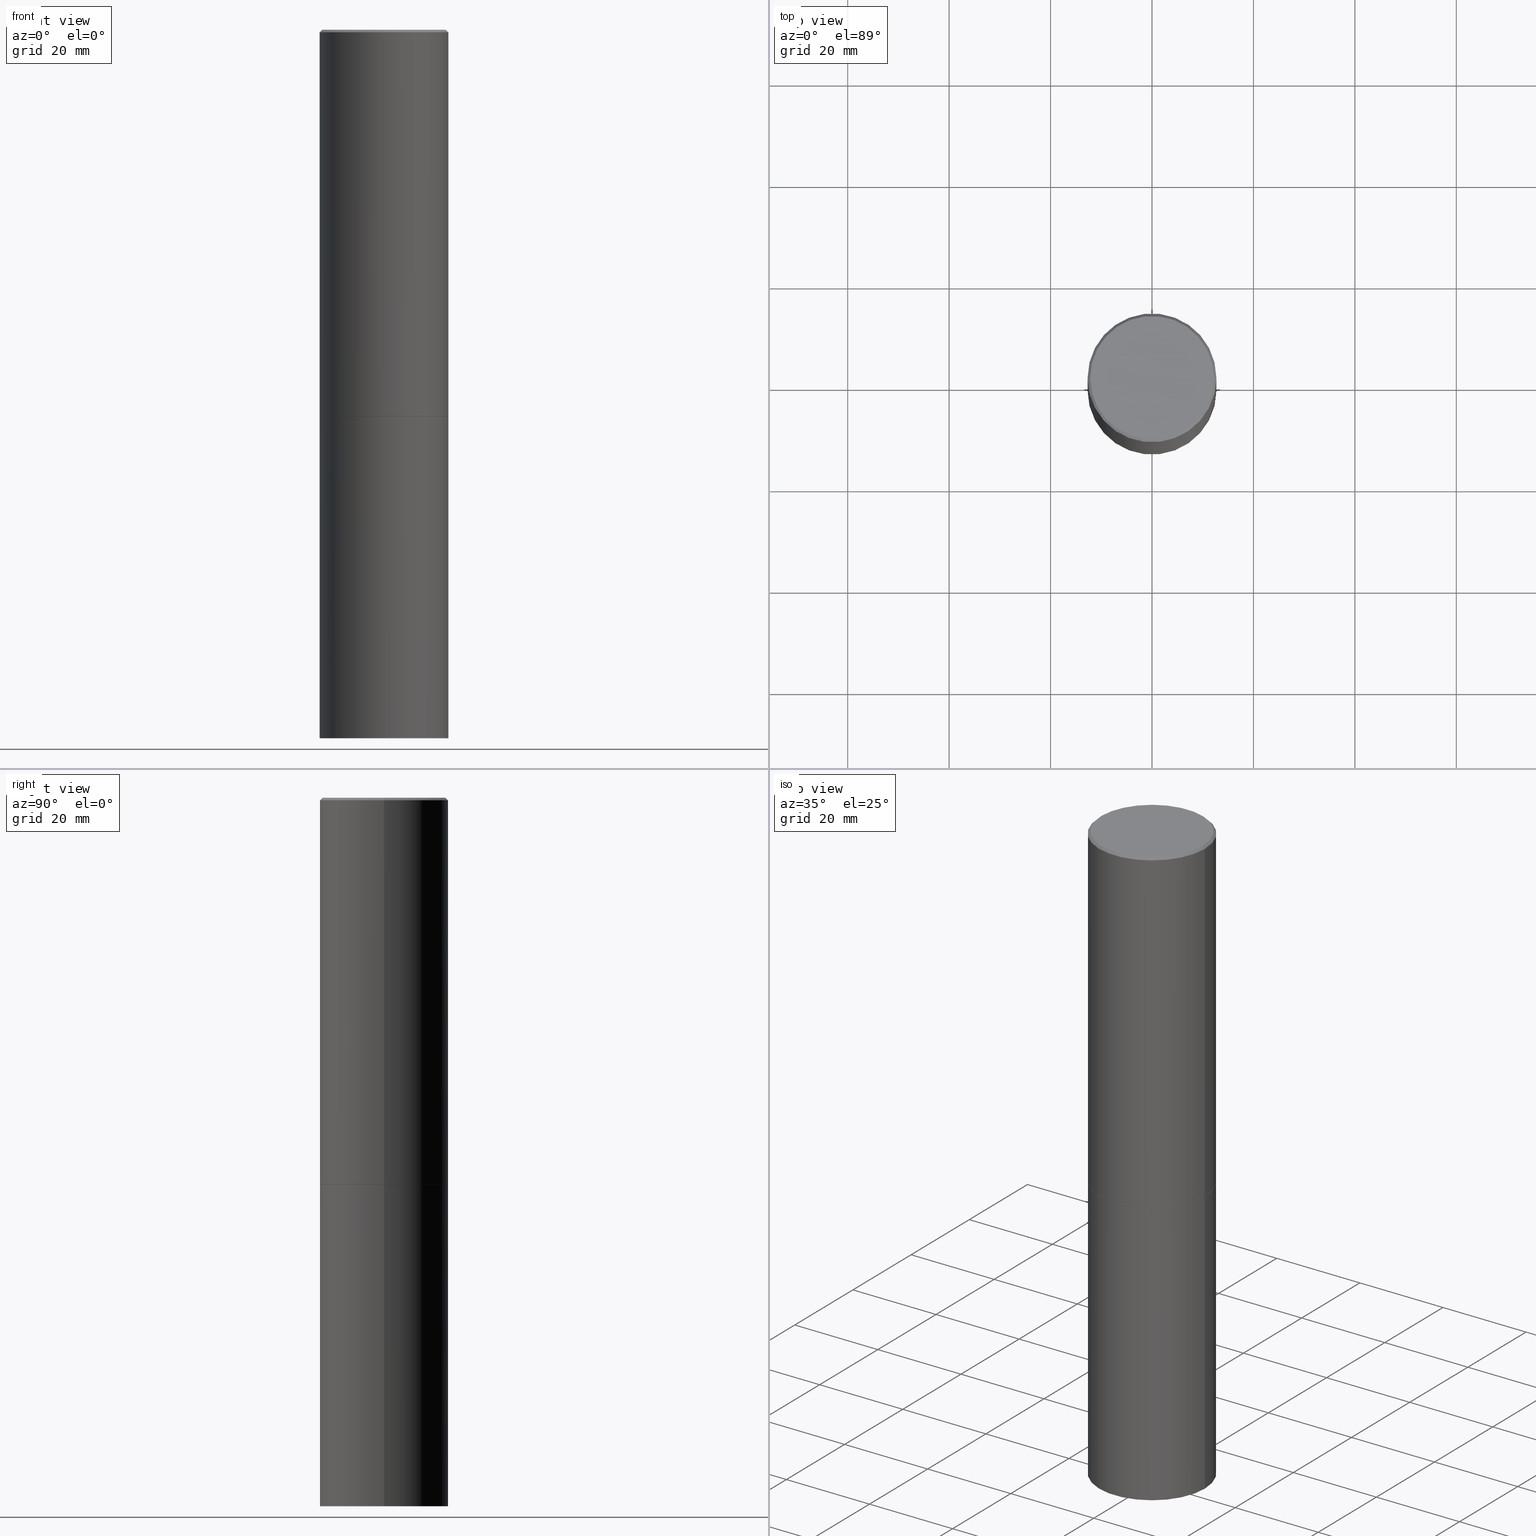
[diagram: canonical four-view strip — front | top / right | iso, engineering-drawing reading convention]
A machine part, canonical four-view strip (front | top / right | iso — engineering-drawing reading convention). The complete STEP part file that produces these views, byte-faithful:
ISO-10303-21;
HEADER;
FILE_DESCRIPTION (( 'STEP AP203' ),
    '1' );
FILE_NAME ('77463.STEP',
    '2024-05-03T15:07:17',
    ( '' ),
    ( '' ),
    'SwSTEP 2.0',
    'SolidWorks 2023',
    '' );
FILE_SCHEMA (( 'CONFIG_CONTROL_DESIGN' ));
ENDSEC;

DATA;
#1 = APPROVAL_PERSON_ORGANIZATION ( #349, #262, #209 ) ;
#2 = CARTESIAN_POINT ( 'NONE',  ( 0.4999999999999997224, -3.500078625662627502E-15, -0.02000000000000013572 ) ) ;
#3 = DIRECTION ( 'NONE',  ( -2.445468806185136877E-29, 3.491481338843145188E-15, 1.000000000000000000 ) ) ;
#4 = PERSON_AND_ORGANIZATION ( #101, #96 ) ;
#5 = EDGE_CURVE ( 'NONE', #277, #221, #28, .T. ) ;
#6 = DIRECTION ( 'NONE',  ( -1.000000000000000000, 6.982962677686266711E-15, 0.000000000000000000 ) ) ;
#7 =( LENGTH_UNIT ( ) NAMED_UNIT ( * ) SI_UNIT ( $, .METRE. ) );
#8 = CARTESIAN_POINT ( 'NONE',  ( 0.000000000000000000, 0.000000000000000000, 0.000000000000000000 ) ) ;
#9 = PERSON_AND_ORGANIZATION ( #101, #96 ) ;
#10 = DIRECTION ( 'NONE',  ( -2.445468806185136597E-29, 3.491481338843145583E-15, 1.000000000000000000 ) ) ;
#11 = EDGE_CURVE ( 'NONE', #110, #270, #358, .T. ) ;
#12 = DATE_AND_TIME ( #105, #291 ) ;
#13 = VERTEX_POINT ( 'NONE', #140 ) ;
#14 = CALENDAR_DATE ( 2024, 3, 5 ) ;
#15 = CARTESIAN_POINT ( 'NONE',  ( 1.345007843401824904E-28, -1.920314736363729972E-14, -5.500000000000000000 ) ) ;
#16 = SECURITY_CLASSIFICATION_LEVEL ( 'unclassified' ) ;
#17 = ORIENTED_EDGE ( 'NONE', *, *, #80, .T. ) ;
#18 = FACE_OUTER_BOUND ( 'NONE', #89, .T. ) ;
#19 = ORIENTED_EDGE ( 'NONE', *, *, #219, .F. ) ;
#20 = CARTESIAN_POINT ( 'NONE',  ( -0.4799999999999995937, 3.386736898677836436E-15, 1.280553747027767124E-17 ) ) ;
#21 = AXIS2_PLACEMENT_3D ( 'NONE', #159, #153, #312 ) ;
#22 = AXIS2_PLACEMENT_3D ( 'NONE', #145, #363, #119 ) ;
#23 = ORIENTED_EDGE ( 'NONE', *, *, #338, .F. ) ;
#24 = LINE ( 'NONE', #32, #199 ) ;
#25 = ORIENTED_EDGE ( 'NONE', *, *, #322, .T. ) ;
#26 = FACE_OUTER_BOUND ( 'NONE', #275, .T. ) ;
#27 = EDGE_LOOP ( 'NONE', ( #191, #279, #19, #170 ) ) ;
#28 = LINE ( 'NONE', #250, #178 ) ;
#29 = DIRECTION ( 'NONE',  ( 1.000000000000000000, -6.982962677686269077E-15, 0.000000000000000000 ) ) ;
#30 = PLANE ( 'NONE',  #22 ) ;
#31 = ADVANCED_FACE ( 'NONE', ( #247 ), #297, .T. ) ;
#32 = CARTESIAN_POINT ( 'NONE',  ( -0.4999999999999997224, 3.421651712066268085E-15, -0.02000000000000013572 ) ) ;
#33 = DESIGN_CONTEXT ( 'detailed design', #92, 'design' ) ;
#34 = CARTESIAN_POINT ( 'NONE',  ( 4.890937612370306439E-31, -6.982962677686338448E-17, -0.02000000000000013572 ) ) ;
#35 = ADVANCED_BREP_SHAPE_REPRESENTATION ( '77463', ( #40, #37, #320 ), #156 ) ;
#36 = CC_DESIGN_APPROVAL ( #136, ( #259 ) ) ;
#37 = MANIFOLD_SOLID_BREP ( 'Body-Move/Copy2[2]', #346 ) ;
#38 = EDGE_CURVE ( 'NONE', #110, #13, #308, .T. ) ;
#39 = APPROVAL_STATUS ( 'not_yet_approved' ) ;
#40 = MANIFOLD_SOLID_BREP ( 'Body-Move/Copy2[1]', #148 ) ;
#41 = COORDINATED_UNIVERSAL_TIME_OFFSET ( 5, 0, .BEHIND. ) ;
#42 = AXIS2_PLACEMENT_3D ( 'NONE', #317, #208, #183 ) ;
#43 = DIRECTION ( 'NONE',  ( -2.445468806185136597E-29, 3.491481338843145583E-15, 1.000000000000000000 ) ) ;
#44 = VECTOR ( 'NONE', #86, 39.37007874015748854 ) ;
#45 = COORDINATED_UNIVERSAL_TIME_OFFSET ( 5, 0, .BEHIND. ) ;
#46 = ORIENTED_EDGE ( 'NONE', *, *, #303, .F. ) ;
#47 = CARTESIAN_POINT ( 'NONE',  ( 3.491481338843206325E-15, 0.4999999999999895639, -3.000000000000001332 ) ) ;
#48 = UNCERTAINTY_MEASURE_WITH_UNIT (LENGTH_MEASURE( 1.000000000000000082E-05 ), #285, 'distance_accuracy_value', 'NONE');
#49 = EDGE_CURVE ( 'NONE', #117, #76, #81, .T. ) ;
#50 = CYLINDRICAL_SURFACE ( 'NONE', #184, 0.5000000000000000000 ) ;
#51 = DIRECTION ( 'NONE',  ( 1.000000000000000000, 0.000000000000000000, 0.000000000000000000 ) ) ;
#52 = EDGE_LOOP ( 'NONE', ( #360, #112, #354, #269 ) ) ;
#53 = AXIS2_PLACEMENT_3D ( 'NONE', #324, #239, #181 ) ;
#54 = MECHANICAL_CONTEXT ( 'NONE', #310, 'mechanical' ) ;
#55 = EDGE_CURVE ( 'NONE', #345, #304, #282, .T. ) ;
#56 = ORIENTED_EDGE ( 'NONE', *, *, #219, .T. ) ;
#57 = DIRECTION ( 'NONE',  ( 2.438088387897960049E-29, -3.491481338843145188E-15, -1.000000000000000000 ) ) ;
#58 = AXIS2_PLACEMENT_3D ( 'NONE', #68, #43, #174 ) ;
#59 = CARTESIAN_POINT ( 'NONE',  ( -0.5000000000000000000, 3.552713678800500929E-15, -2.459467545127452891E-29 ) ) ;
#60 = PRODUCT_RELATED_PRODUCT_CATEGORY ( 'detail', '', ( #364 ) ) ;
#61 = ORIENTED_EDGE ( 'NONE', *, *, #38, .T. ) ;
#62 = CARTESIAN_POINT ( 'NONE',  ( 4.890937612370306439E-31, -6.982962677686338448E-17, -0.02000000000000013572 ) ) ;
#63 = CARTESIAN_POINT ( 'NONE',  ( 0.000000000000000000, 0.000000000000000000, 0.000000000000000000 ) ) ;
#64 = CIRCLE ( 'NONE', #21, 0.4989999999999999991 ) ;
#65 = EDGE_LOOP ( 'NONE', ( #301, #90, #351, #46 ) ) ;
#66 = DIRECTION ( 'NONE',  ( 1.000000000000000000, -6.982962677686266711E-15, 4.876176775795935793E-29 ) ) ;
#67 = CIRCLE ( 'NONE', #73, 0.4799999999999995937 ) ;
#68 = CARTESIAN_POINT ( 'NONE',  ( 7.333960949749226429E-29, -1.047095253519059492E-14, -2.999000000000000554 ) ) ;
#69 = COORDINATED_UNIVERSAL_TIME_OFFSET ( 5, 0, .BEHIND. ) ;
#70 = CARTESIAN_POINT ( 'NONE',  ( 0.4999999999999998335, -3.491481338843132566E-15, 2.438088387897967336E-29 ) ) ;
#71 = LENGTH_MEASURE_WITH_UNIT ( LENGTH_MEASURE( 0.02539999999999999897 ), #7 );
#72 = ADVANCED_FACE ( 'NONE', ( #280 ), #30, .F. ) ;
#73 = AXIS2_PLACEMENT_3D ( 'NONE', #319, #126, #186 ) ;
#74 = DIRECTION ( 'NONE',  ( 1.000000000000000000, -6.982962677686266711E-15, 0.000000000000000000 ) ) ;
#75 = APPLICATION_PROTOCOL_DEFINITION ( 'international standard', 'config_control_design', 1994, #92 ) ;
#76 = VERTEX_POINT ( 'NONE', #175 ) ;
#77 = DIRECTION ( 'NONE',  ( 1.000000000000000000, -6.982962677686266711E-15, 0.000000000000000000 ) ) ;
#78 = EDGE_CURVE ( 'NONE', #197, #76, #128, .T. ) ;
#79 = LOCAL_TIME ( 11, 7, 17.00000000000000000, #41 ) ;
#80 = EDGE_CURVE ( 'NONE', #304, #221, #24, .T. ) ;
#81 = LINE ( 'NONE', #59, #172 ) ;
#82 = CARTESIAN_POINT ( 'NONE',  ( 3.351822085289404787E-15, 0.4799999999999995937, -1.669508273909557867E-15 ) ) ;
#83 = DIRECTION ( 'NONE',  ( 0.7071067811868130271, -2.468850131085038979E-15, 0.7071067811862817853 ) ) ;
#84 = CC_DESIGN_PERSON_AND_ORGANIZATION_ASSIGNMENT ( #124, #158, ( #364 ) ) ;
#85 = CONICAL_SURFACE ( 'NONE', #251, 0.4989999999999999991, 0.7853981633978239785 ) ;
#86 = DIRECTION ( 'NONE',  ( -0.7071067811868130271, 7.493145998871311837E-15, 0.7071067811862817853 ) ) ;
#87 = DIRECTION ( 'NONE',  ( -2.445468806185136597E-29, 3.491481338843145583E-15, 1.000000000000000000 ) ) ;
#88 = DIRECTION ( 'NONE',  ( 1.000000000000000000, -6.982962677686269077E-15, 0.000000000000000000 ) ) ;
#89 = EDGE_LOOP ( 'NONE', ( #273, #240, #133, #217 ) ) ;
#90 = ORIENTED_EDGE ( 'NONE', *, *, #147, .T. ) ;
#91 = CIRCLE ( 'NONE', #58, 0.5000000000000000000 ) ;
#92 = APPLICATION_CONTEXT ( 'configuration controlled 3d designs of mechanical parts and assemblies' ) ;
#93 = CARTESIAN_POINT ( 'NONE',  ( 0.5000000000000000000, -3.491481338843133355E-15, 2.438088387897967896E-29 ) ) ;
#94 = CC_DESIGN_DATE_AND_TIME_ASSIGNMENT ( #12, #236, ( #339 ) ) ;
#95 = DIRECTION ( 'NONE',  ( -2.445468806185136597E-29, 3.491481338843145583E-15, 1.000000000000000000 ) ) ;
#96 = ORGANIZATION ( 'UNSPECIFIED', 'UNSPECIFIED', '' ) ;
#97 = LINE ( 'NONE', #70, #359 ) ;
#98 = CARTESIAN_POINT ( 'NONE',  ( 0.5000000000000000000, -1.396592535537256813E-14, -2.999999999999999556 ) ) ;
#99 = DIRECTION ( 'NONE',  ( -2.445468806185136597E-29, 3.491481338843145583E-15, 1.000000000000000000 ) ) ;
#100 = CALENDAR_DATE ( 2024, 3, 5 ) ;
#101 = PERSON ( 'UNSPECIFIED', 'UNSPECIFIED', 'UNSPECIFIED', ('UNSPECIFIED'), ('UNSPECIFIED'), ('UNSPECIFIED') ) ;
#102 = ADVANCED_FACE ( 'NONE', ( #218 ), #146, .T. ) ;
#103 = APPROVAL_STATUS ( 'not_yet_approved' ) ;
#104 = CARTESIAN_POINT ( 'NONE',  ( -0.5000000000000000000, -1.717677402183226998E-15, -2.999000000000000554 ) ) ;
#105 = CALENDAR_DATE ( 2024, 3, 5 ) ;
#106 = DIRECTION ( 'NONE',  ( 1.000000000000000000, -6.982962677686262766E-15, 0.000000000000000000 ) ) ;
#107 = EDGE_LOOP ( 'NONE', ( #357, #226 ) ) ;
#108 = FACE_OUTER_BOUND ( 'NONE', #27, .T. ) ;
#109 = CC_DESIGN_SECURITY_CLASSIFICATION ( #259, ( #296 ) ) ;
#110 = VERTEX_POINT ( 'NONE', #326 ) ;
#111 = EDGE_CURVE ( 'NONE', #13, #277, #138, .T. ) ;
#112 = ORIENTED_EDGE ( 'NONE', *, *, #245, .T. ) ;
#113 = CARTESIAN_POINT ( 'NONE',  ( -0.4989999999999999991, -6.928835765086534855E-15, -2.999999999999999556 ) ) ;
#114 = DIRECTION ( 'NONE',  ( -2.445468806185136597E-29, 3.491481338843145583E-15, 1.000000000000000000 ) ) ;
#115 = CONICAL_SURFACE ( 'NONE', #213, 0.4999999999999997224, 0.7853981633974477239 ) ;
#116 = VERTEX_POINT ( 'NONE', #165 ) ;
#117 = VERTEX_POINT ( 'NONE', #276 ) ;
#118 = ADVANCED_FACE ( 'NONE', ( #26 ), #85, .T. ) ;
#119 = DIRECTION ( 'NONE',  ( 1.000000000000000000, -6.982962677686265922E-15, 4.876176775795935793E-29 ) ) ;
#120 = CARTESIAN_POINT ( 'NONE',  ( 0.4999999999999997224, -3.500078625662627502E-15, -0.02000000000000013572 ) ) ;
#121 = CC_DESIGN_DATE_AND_TIME_ASSIGNMENT ( #332, #167, ( #259 ) ) ;
#122 = DIRECTION ( 'NONE',  ( 0.7071067811865471286, -7.319954787623254468E-15, -0.7071067811865479058 ) ) ;
#123 = LOCAL_TIME ( 11, 7, 17.00000000000000000, #155 ) ;
#124 = PERSON_AND_ORGANIZATION ( #101, #96 ) ;
#125 = DIRECTION ( 'NONE',  ( 2.445468806185136597E-29, -3.491481338843145583E-15, -1.000000000000000000 ) ) ;
#126 = DIRECTION ( 'NONE',  ( -2.445468806185136597E-29, 3.491481338843145583E-15, 1.000000000000000000 ) ) ;
#127 = ORIENTED_EDGE ( 'NONE', *, *, #329, .F. ) ;
#128 = CIRCLE ( 'NONE', #228, 0.5000000000000000000 ) ;
#129 = APPROVAL_DATE_TIME ( #268, #262 ) ;
#130 = DIRECTION ( 'NONE',  ( 2.438088387897960049E-29, -3.491481338843145188E-15, -1.000000000000000000 ) ) ;
#131 = PERSON_AND_ORGANIZATION ( #101, #96 ) ;
#132 = ORIENTED_EDGE ( 'NONE', *, *, #365, .F. ) ;
#133 = ORIENTED_EDGE ( 'NONE', *, *, #78, .F. ) ;
#134 = DIRECTION ( 'NONE',  ( -2.445468806185136597E-29, 3.491481338843145583E-15, 1.000000000000000000 ) ) ;
#135 = AXIS2_PLACEMENT_3D ( 'NONE', #212, #288, #238 ) ;
#136 = APPROVAL ( #39, 'UNSPECIFIED' ) ;
#137 = ORIENTED_EDGE ( 'NONE', *, *, #11, .F. ) ;
#138 = LINE ( 'NONE', #113, #44 ) ;
#139 = ORIENTED_EDGE ( 'NONE', *, *, #111, .T. ) ;
#140 = CARTESIAN_POINT ( 'NONE',  ( -0.4989999999999999991, -6.923537310738314819E-15, -2.999999999999999556 ) ) ;
#141 = VECTOR ( 'NONE', #122, 39.37007874015748143 ) ;
#142 = DIRECTION ( 'NONE',  ( -2.445468806185136597E-29, 3.491481338843145583E-15, 1.000000000000000000 ) ) ;
#143 = DIRECTION ( 'NONE',  ( -2.445468806185136597E-29, 3.491481338843145583E-15, 1.000000000000000000 ) ) ;
#144 = ADVANCED_FACE ( 'NONE', ( #194 ), #341, .T. ) ;
#145 = CARTESIAN_POINT ( 'NONE',  ( 7.336406418555408669E-29, -1.047444401652943478E-14, -2.999999999999999556 ) ) ;
#146 = CONICAL_SURFACE ( 'NONE', #190, 0.4989999999999999991, 0.7853981633978239785 ) ;
#147 = EDGE_CURVE ( 'NONE', #277, #270, #91, .T. ) ;
#148 = CLOSED_SHELL ( 'NONE', ( #305, #265, #284, #200 ) ) ;
#149 = EDGE_CURVE ( 'NONE', #270, #224, #97, .T. ) ;
#150 = COORDINATED_UNIVERSAL_TIME_OFFSET ( 5, 0, .BEHIND. ) ;
#151 = DIRECTION ( 'NONE',  ( -2.445468806185136597E-29, 3.491481338843145583E-15, 1.000000000000000000 ) ) ;
#152 = PERSON_AND_ORGANIZATION_ROLE ( 'creator' ) ;
#153 = DIRECTION ( 'NONE',  ( -2.445468806185136597E-29, 3.491481338843145583E-15, 1.000000000000000000 ) ) ;
#154 = AXIS2_PLACEMENT_3D ( 'NONE', #47, #130, #356 ) ;
#155 = COORDINATED_UNIVERSAL_TIME_OFFSET ( 5, 0, .BEHIND. ) ;
#156 =( GEOMETRIC_REPRESENTATION_CONTEXT ( 3 ) GLOBAL_UNCERTAINTY_ASSIGNED_CONTEXT ( ( #48 ) ) GLOBAL_UNIT_ASSIGNED_CONTEXT ( ( #285, #242, #292 ) ) REPRESENTATION_CONTEXT ( 'NONE', 'WORKASPACE' ) );
#157 = DIRECTION ( 'NONE',  ( -2.445468806185136597E-29, 3.491481338843145583E-15, 1.000000000000000000 ) ) ;
#158 = PERSON_AND_ORGANIZATION_ROLE ( 'design_owner' ) ;
#159 = CARTESIAN_POINT ( 'NONE',  ( 7.336406418555408669E-29, -1.047444401652943478E-14, -2.999999999999999556 ) ) ;
#160 = EDGE_CURVE ( 'NONE', #116, #197, #261, .T. ) ;
#161 = CYLINDRICAL_SURFACE ( 'NONE', #42, 0.4999999999999998335 ) ;
#162 = ORIENTED_EDGE ( 'NONE', *, *, #55, .T. ) ;
#163 = CC_DESIGN_APPROVAL ( #249, ( #339 ) ) ;
#164 = DIRECTION ( 'NONE',  ( -2.445468806185136877E-29, 3.491481338843145188E-15, 1.000000000000000000 ) ) ;
#165 = CARTESIAN_POINT ( 'NONE',  ( 0.5000000000000000000, -2.269462870248043307E-14, -5.500000000000000000 ) ) ;
#166 = ORIENTED_EDGE ( 'NONE', *, *, #180, .F. ) ;
#167 = DATE_TIME_ROLE ( 'classification_date' ) ;
#168 = ORIENTED_EDGE ( 'NONE', *, *, #329, .T. ) ;
#169 = CC_DESIGN_APPROVAL ( #262, ( #296 ) ) ;
#170 = ORIENTED_EDGE ( 'NONE', *, *, #149, .F. ) ;
#171 = CYLINDRICAL_SURFACE ( 'NONE', #257, 0.5000000000000000000 ) ;
#172 = VECTOR ( 'NONE', #164, 39.37007874015748143 ) ;
#173 = AXIS2_PLACEMENT_3D ( 'NONE', #34, #95, #202 ) ;
#174 = DIRECTION ( 'NONE',  ( 1.000000000000000000, -6.982962677686266711E-15, 0.000000000000000000 ) ) ;
#175 = CARTESIAN_POINT ( 'NONE',  ( -0.5000000000000000000, -1.128608201128286632E-14, -2.999999999999999556 ) ) ;
#176 = AXIS2_PLACEMENT_3D ( 'NONE', #82, #57, #216 ) ;
#177 = APPLICATION_PROTOCOL_DEFINITION ( 'international standard', 'config_control_design', 1994, #310 ) ;
#178 = VECTOR ( 'NONE', #325, 39.37007874015748143 ) ;
#179 = CARTESIAN_POINT ( 'NONE',  ( 0.4799999999999995937, -3.396558832296480127E-15, 1.280553747032483033E-17 ) ) ;
#180 = EDGE_CURVE ( 'NONE', #345, #224, #342, .T. ) ;
#181 = DIRECTION ( 'NONE',  ( 1.000000000000000000, -6.982962677686262766E-15, 0.000000000000000000 ) ) ;
#182 = EDGE_LOOP ( 'NONE', ( #166, #299, #17, #254 ) ) ;
#183 = DIRECTION ( 'NONE',  ( 1.000000000000000000, -6.982962677686267499E-15, 4.876176775795936353E-29 ) ) ;
#184 = AXIS2_PLACEMENT_3D ( 'NONE', #290, #157, #267 ) ;
#185 = PERSON_AND_ORGANIZATION_ROLE ( 'creator' ) ;
#186 = DIRECTION ( 'NONE',  ( 1.000000000000000000, -6.982962677686266711E-15, 4.876036955247133327E-29 ) ) ;
#187 = DIRECTION ( 'NONE',  ( 1.000000000000000000, -6.982962677686266711E-15, 0.000000000000000000 ) ) ;
#188 = CARTESIAN_POINT ( 'NONE',  ( 7.336406418555408669E-29, -1.047444401652943478E-14, -2.999999999999999556 ) ) ;
#189 = FACE_OUTER_BOUND ( 'NONE', #246, .T. ) ;
#190 = AXIS2_PLACEMENT_3D ( 'NONE', #300, #361, #29 ) ;
#191 = ORIENTED_EDGE ( 'NONE', *, *, #365, .T. ) ;
#192 = LOCAL_TIME ( 11, 7, 17.00000000000000000, #69 ) ;
#193 = ORIENTED_EDGE ( 'NONE', *, *, #180, .T. ) ;
#194 = FACE_OUTER_BOUND ( 'NONE', #355, .T. ) ;
#195 = ORIENTED_EDGE ( 'NONE', *, *, #80, .F. ) ;
#196 = CALENDAR_DATE ( 2024, 3, 5 ) ;
#197 = VERTEX_POINT ( 'NONE', #98 ) ;
#198 = AXIS2_PLACEMENT_3D ( 'NONE', #244, #321, #187 ) ;
#199 = VECTOR ( 'NONE', #337, 39.37007874015748143 ) ;
#200 = ADVANCED_FACE ( 'NONE', ( #309 ), #171, .T. ) ;
#201 = ADVANCED_FACE ( 'NONE', ( #283 ), #115, .T. ) ;
#202 = DIRECTION ( 'NONE',  ( 1.000000000000000000, -6.982962677686266711E-15, 0.000000000000000000 ) ) ;
#203 = CIRCLE ( 'NONE', #336, 0.4999999999999997224 ) ;
#204 = APPROVAL_ROLE ( '' ) ;
#205 = APPROVAL_STATUS ( 'not_yet_approved' ) ;
#206 = LOCAL_TIME ( 11, 7, 17.00000000000000000, #150 ) ;
#207 = AXIS2_PLACEMENT_3D ( 'NONE', #188, #143, #362 ) ;
#208 = DIRECTION ( 'NONE',  ( -2.445468806185136597E-29, 3.491481338843145583E-15, 1.000000000000000000 ) ) ;
#209 = APPROVAL_ROLE ( '' ) ;
#210 = EDGE_LOOP ( 'NONE', ( #316, #335, #243, #127 ) ) ;
#211 = PERSON_AND_ORGANIZATION ( #101, #96 ) ;
#212 = CARTESIAN_POINT ( 'NONE',  ( 3.491481338843267462E-15, 0.4999999999999807931, -5.500000000000001776 ) ) ;
#213 = AXIS2_PLACEMENT_3D ( 'NONE', #340, #125, #281 ) ;
#214 = CARTESIAN_POINT ( 'NONE',  ( 4.890937612370306439E-31, -6.982962677686338448E-17, -0.02000000000000013572 ) ) ;
#215 = ORIENTED_EDGE ( 'NONE', *, *, #306, .F. ) ;
#216 = DIRECTION ( 'NONE',  ( -1.000000000000000000, 6.982962677686265922E-15, -4.876176775795935793E-29 ) ) ;
#217 = ORIENTED_EDGE ( 'NONE', *, *, #160, .F. ) ;
#218 = FACE_OUTER_BOUND ( 'NONE', #52, .T. ) ;
#219 = EDGE_CURVE ( 'NONE', #224, #221, #286, .T. ) ;
#220 = CALENDAR_DATE ( 2024, 3, 5 ) ;
#221 = VERTEX_POINT ( 'NONE', #344 ) ;
#222 = CIRCLE ( 'NONE', #227, 0.5000000000000000000 ) ;
#223 = CARTESIAN_POINT ( 'NONE',  ( 7.336406418555408669E-29, -1.047444401652943478E-14, -2.999999999999999556 ) ) ;
#224 = VERTEX_POINT ( 'NONE', #120 ) ;
#225 = APPROVAL_DATE_TIME ( #233, #136 ) ;
#226 = ORIENTED_EDGE ( 'NONE', *, *, #245, .F. ) ;
#227 = AXIS2_PLACEMENT_3D ( 'NONE', #15, #134, #106 ) ;
#228 = AXIS2_PLACEMENT_3D ( 'NONE', #302, #142, #253 ) ;
#229 = AXIS2_PLACEMENT_3D ( 'NONE', #234, #99, #74 ) ;
#230 = SHAPE_DEFINITION_REPRESENTATION ( #298, #35 ) ;
#231 = DIMENSIONAL_EXPONENTS ( 1.000000000000000000, 0.000000000000000000, 0.000000000000000000, 0.000000000000000000, 0.000000000000000000, 0.000000000000000000, 0.000000000000000000 ) ;
#232 = DIRECTION ( 'NONE',  ( -2.445468806185136877E-29, 3.491481338843145188E-15, 1.000000000000000000 ) ) ;
#233 = DATE_AND_TIME ( #196, #192 ) ;
#234 = CARTESIAN_POINT ( 'NONE',  ( 7.333960949749226429E-29, -1.047095253519059492E-14, -2.999000000000000554 ) ) ;
#235 = EDGE_LOOP ( 'NONE', ( #237, #168 ) ) ;
#236 = DATE_TIME_ROLE ( 'creation_date' ) ;
#237 = ORIENTED_EDGE ( 'NONE', *, *, #78, .T. ) ;
#238 = DIRECTION ( 'NONE',  ( -1.000000000000000000, 6.982962677686265922E-15, -4.876176775795935793E-29 ) ) ;
#239 = DIRECTION ( 'NONE',  ( -2.445468806185136597E-29, 3.491481338843145583E-15, 1.000000000000000000 ) ) ;
#240 = ORIENTED_EDGE ( 'NONE', *, *, #49, .T. ) ;
#241 = FACE_OUTER_BOUND ( 'NONE', #293, .T. ) ;
#242 =( NAMED_UNIT ( * ) PLANE_ANGLE_UNIT ( ) SI_UNIT ( $, .RADIAN. ) );
#243 = ORIENTED_EDGE ( 'NONE', *, *, #160, .T. ) ;
#244 = CARTESIAN_POINT ( 'NONE',  ( 7.336406418555408669E-29, -1.047444401652943478E-14, -2.999999999999999556 ) ) ;
#245 = EDGE_CURVE ( 'NONE', #13, #110, #64, .T. ) ;
#246 = EDGE_LOOP ( 'NONE', ( #25, #162 ) ) ;
#247 = FACE_OUTER_BOUND ( 'NONE', #65, .T. ) ;
#248 = ADVANCED_FACE ( 'NONE', ( #108 ), #161, .T. ) ;
#249 = APPROVAL ( #205, 'UNSPECIFIED' ) ;
#250 = CARTESIAN_POINT ( 'NONE',  ( -0.4999999999999998335, 3.552713678800499746E-15, -2.459467545127452330E-29 ) ) ;
#251 = AXIS2_PLACEMENT_3D ( 'NONE', #223, #331, #88 ) ;
#252 = DIRECTION ( 'NONE',  ( 1.000000000000000000, -6.982962677686267499E-15, 4.876176775795936353E-29 ) ) ;
#253 = DIRECTION ( 'NONE',  ( 1.000000000000000000, -6.982962677686266711E-15, 0.000000000000000000 ) ) ;
#254 = ORIENTED_EDGE ( 'NONE', *, *, #303, .T. ) ;
#255 = DIRECTION ( 'NONE',  ( 1.000000000000000000, -6.982962677686266711E-15, 4.876036955247133327E-29 ) ) ;
#256 = AXIS2_PLACEMENT_3D ( 'NONE', #63, #114, #252 ) ;
#257 = AXIS2_PLACEMENT_3D ( 'NONE', #8, #151, #66 ) ;
#258 = DIRECTION ( 'NONE',  ( 2.445468806185136597E-29, -3.491481338843145583E-15, -1.000000000000000000 ) ) ;
#259 = SECURITY_CLASSIFICATION ( '', '', #16 ) ;
#260 = PERSON_AND_ORGANIZATION ( #101, #96 ) ;
#261 = LINE ( 'NONE', #93, #328 ) ;
#262 = APPROVAL ( #103, 'UNSPECIFIED' ) ;
#263 = CARTESIAN_POINT ( 'NONE',  ( 0.000000000000000000, 0.000000000000000000, 0.000000000000000000 ) ) ;
#264 = DATE_AND_TIME ( #100, #79 ) ;
#265 = ADVANCED_FACE ( 'NONE', ( #241 ), #287, .T. ) ;
#266 = CIRCLE ( 'NONE', #198, 0.5000000000000000000 ) ;
#267 = DIRECTION ( 'NONE',  ( 1.000000000000000000, -6.982962677686266711E-15, 4.876176775795935793E-29 ) ) ;
#268 = DATE_AND_TIME ( #14, #123 ) ;
#269 = ORIENTED_EDGE ( 'NONE', *, *, #147, .F. ) ;
#270 = VERTEX_POINT ( 'NONE', #314 ) ;
#271 = FACE_OUTER_BOUND ( 'NONE', #235, .T. ) ;
#272 = CIRCLE ( 'NONE', #229, 0.5000000000000000000 ) ;
#273 = ORIENTED_EDGE ( 'NONE', *, *, #306, .T. ) ;
#274 = CC_DESIGN_PERSON_AND_ORGANIZATION_ASSIGNMENT ( #260, #318, ( #296 ) ) ;
#275 = EDGE_LOOP ( 'NONE', ( #61, #139, #132, #137 ) ) ;
#276 = CARTESIAN_POINT ( 'NONE',  ( -0.5000000000000000000, -1.128608201128286632E-14, -5.500000000000000000 ) ) ;
#277 = VERTEX_POINT ( 'NONE', #104 ) ;
#278 = AXIS2_PLACEMENT_3D ( 'NONE', #62, #258, #6 ) ;
#279 = ORIENTED_EDGE ( 'NONE', *, *, #5, .T. ) ;
#280 = FACE_OUTER_BOUND ( 'NONE', #107, .T. ) ;
#281 = DIRECTION ( 'NONE',  ( -1.000000000000000000, 6.982962677686266711E-15, 0.000000000000000000 ) ) ;
#282 = CIRCLE ( 'NONE', #327, 0.4799999999999995937 ) ;
#283 = FACE_OUTER_BOUND ( 'NONE', #182, .T. ) ;
#284 = ADVANCED_FACE ( 'NONE', ( #271 ), #352, .F. ) ;
#285 =( CONVERSION_BASED_UNIT ( 'INCH', #71 ) LENGTH_UNIT ( ) NAMED_UNIT ( #231 ) );
#286 = CIRCLE ( 'NONE', #173, 0.4999999999999997224 ) ;
#287 = PLANE ( 'NONE',  #135 ) ;
#288 = DIRECTION ( 'NONE',  ( 2.438088387897960049E-29, -3.491481338843145188E-15, -1.000000000000000000 ) ) ;
#289 = APPROVAL_DATE_TIME ( #264, #249 ) ;
#290 = CARTESIAN_POINT ( 'NONE',  ( 0.000000000000000000, 0.000000000000000000, 0.000000000000000000 ) ) ;
#291 = LOCAL_TIME ( 11, 7, 17.00000000000000000, #45 ) ;
#292 =( NAMED_UNIT ( * ) SI_UNIT ( $, .STERADIAN. ) SOLID_ANGLE_UNIT ( ) );
#293 = EDGE_LOOP ( 'NONE', ( #215, #23 ) ) ;
#294 = CC_DESIGN_PERSON_AND_ORGANIZATION_ASSIGNMENT ( #131, #353, ( #259 ) ) ;
#295 = PLANE ( 'NONE',  #176 ) ;
#296 = PRODUCT_DEFINITION_FORMATION_WITH_SPECIFIED_SOURCE ( 'ANY', '', #364, .NOT_KNOWN. ) ;
#297 = CYLINDRICAL_SURFACE ( 'NONE', #256, 0.4999999999999998335 ) ;
#298 = PRODUCT_DEFINITION_SHAPE ( 'NONE', 'NONE',  #339 ) ;
#299 = ORIENTED_EDGE ( 'NONE', *, *, #322, .F. ) ;
#300 = CARTESIAN_POINT ( 'NONE',  ( 7.336406418555408669E-29, -1.047444401652943478E-14, -2.999999999999999556 ) ) ;
#301 = ORIENTED_EDGE ( 'NONE', *, *, #5, .F. ) ;
#302 = CARTESIAN_POINT ( 'NONE',  ( 7.336406418555408669E-29, -1.047444401652943478E-14, -2.999999999999999556 ) ) ;
#303 = EDGE_CURVE ( 'NONE', #221, #224, #203, .T. ) ;
#304 = VERTEX_POINT ( 'NONE', #20 ) ;
#305 = ADVANCED_FACE ( 'NONE', ( #18 ), #50, .T. ) ;
#306 = EDGE_CURVE ( 'NONE', #116, #117, #222, .T. ) ;
#307 = CIRCLE ( 'NONE', #53, 0.5000000000000000000 ) ;
#308 = CIRCLE ( 'NONE', #207, 0.4989999999999999991 ) ;
#309 = FACE_OUTER_BOUND ( 'NONE', #210, .T. ) ;
#310 = APPLICATION_CONTEXT ( 'configuration controlled 3d designs of mechanical parts and assemblies' ) ;
#311 = DIRECTION ( 'NONE',  ( 0.000000000000000000, 0.000000000000000000, 1.000000000000000000 ) ) ;
#312 = DIRECTION ( 'NONE',  ( 1.000000000000000000, -6.982962677686269077E-15, 0.000000000000000000 ) ) ;
#313 = APPROVAL_PERSON_ORGANIZATION ( #9, #249, #350 ) ;
#314 = CARTESIAN_POINT ( 'NONE',  ( 0.5000000000000000000, -1.396243387403372828E-14, -2.999000000000000554 ) ) ;
#315 = PERSON_AND_ORGANIZATION ( #101, #96 ) ;
#316 = ORIENTED_EDGE ( 'NONE', *, *, #49, .F. ) ;
#317 = CARTESIAN_POINT ( 'NONE',  ( 0.000000000000000000, 0.000000000000000000, 0.000000000000000000 ) ) ;
#318 = PERSON_AND_ORGANIZATION_ROLE ( 'design_supplier' ) ;
#319 = CARTESIAN_POINT ( 'NONE',  ( -3.131554243005659264E-46, 4.471029511141341874E-32, 1.280553747030123384E-17 ) ) ;
#320 = AXIS2_PLACEMENT_3D ( 'NONE', #263, #311, #51 ) ;
#321 = DIRECTION ( 'NONE',  ( -2.445468806185136597E-29, 3.491481338843145583E-15, 1.000000000000000000 ) ) ;
#322 = EDGE_CURVE ( 'NONE', #304, #345, #67, .T. ) ;
#323 = CARTESIAN_POINT ( 'NONE',  ( 0.4989999999999999991, -1.395894239269488369E-14, -2.999999999999999556 ) ) ;
#324 = CARTESIAN_POINT ( 'NONE',  ( 1.345007843401824904E-28, -1.920314736363729972E-14, -5.500000000000000000 ) ) ;
#325 = DIRECTION ( 'NONE',  ( -2.445468806185136877E-29, 3.491481338843145188E-15, 1.000000000000000000 ) ) ;
#326 = CARTESIAN_POINT ( 'NONE',  ( 0.4989999999999999991, -1.395894239269488369E-14, -2.999999999999999556 ) ) ;
#327 = AXIS2_PLACEMENT_3D ( 'NONE', #330, #87, #255 ) ;
#328 = VECTOR ( 'NONE', #3, 39.37007874015748143 ) ;
#329 = EDGE_CURVE ( 'NONE', #76, #197, #266, .T. ) ;
#330 = CARTESIAN_POINT ( 'NONE',  ( -3.131554243005659264E-46, 4.471029511141341874E-32, 1.280553747030123384E-17 ) ) ;
#331 = DIRECTION ( 'NONE',  ( -2.445468806185136597E-29, 3.491481338843145583E-15, 1.000000000000000000 ) ) ;
#332 = DATE_AND_TIME ( #220, #206 ) ;
#333 = ORIENTED_EDGE ( 'NONE', *, *, #55, .F. ) ;
#334 = ADVANCED_FACE ( 'NONE', ( #189 ), #295, .F. ) ;
#335 = ORIENTED_EDGE ( 'NONE', *, *, #338, .T. ) ;
#336 = AXIS2_PLACEMENT_3D ( 'NONE', #214, #10, #77 ) ;
#337 = DIRECTION ( 'NONE',  ( -0.7071067811865471286, 2.468850131082252722E-15, -0.7071067811865479058 ) ) ;
#338 = EDGE_CURVE ( 'NONE', #117, #116, #307, .T. ) ;
#339 = PRODUCT_DEFINITION ( 'UNKNOWN', '', #296, #33 ) ;
#340 = CARTESIAN_POINT ( 'NONE',  ( 4.890937612370306439E-31, -6.982962677686338448E-17, -0.02000000000000013572 ) ) ;
#341 = CONICAL_SURFACE ( 'NONE', #278, 0.4999999999999997224, 0.7853981633974477239 ) ;
#342 = LINE ( 'NONE', #2, #141 ) ;
#343 = CC_DESIGN_PERSON_AND_ORGANIZATION_ASSIGNMENT ( #315, #152, ( #339 ) ) ;
#344 = CARTESIAN_POINT ( 'NONE',  ( -0.4999999999999997224, 3.421651712066268085E-15, -0.02000000000000013572 ) ) ;
#345 = VERTEX_POINT ( 'NONE', #179 ) ;
#346 = CLOSED_SHELL ( 'NONE', ( #118, #248, #144, #201, #31, #102, #72, #334 ) ) ;
#347 = APPROVAL_PERSON_ORGANIZATION ( #4, #136, #204 ) ;
#348 = VECTOR ( 'NONE', #83, 39.37007874015748854 ) ;
#349 = PERSON_AND_ORGANIZATION ( #101, #96 ) ;
#350 = APPROVAL_ROLE ( '' ) ;
#351 = ORIENTED_EDGE ( 'NONE', *, *, #149, .T. ) ;
#352 = PLANE ( 'NONE',  #154 ) ;
#353 = PERSON_AND_ORGANIZATION_ROLE ( 'classification_officer' ) ;
#354 = ORIENTED_EDGE ( 'NONE', *, *, #11, .T. ) ;
#355 = EDGE_LOOP ( 'NONE', ( #333, #193, #56, #195 ) ) ;
#356 = DIRECTION ( 'NONE',  ( -1.000000000000000000, 6.982962677686265922E-15, -4.876176775795935793E-29 ) ) ;
#357 = ORIENTED_EDGE ( 'NONE', *, *, #38, .F. ) ;
#358 = LINE ( 'NONE', #323, #348 ) ;
#359 = VECTOR ( 'NONE', #232, 39.37007874015748143 ) ;
#360 = ORIENTED_EDGE ( 'NONE', *, *, #111, .F. ) ;
#361 = DIRECTION ( 'NONE',  ( -2.445468806185136597E-29, 3.491481338843145583E-15, 1.000000000000000000 ) ) ;
#362 = DIRECTION ( 'NONE',  ( 1.000000000000000000, -6.982962677686269077E-15, 0.000000000000000000 ) ) ;
#363 = DIRECTION ( 'NONE',  ( -2.438088387897960049E-29, 3.491481338843145188E-15, 1.000000000000000000 ) ) ;
#364 = PRODUCT ( '77463', '77463', '', ( #54 ) ) ;
#365 = EDGE_CURVE ( 'NONE', #270, #277, #272, .T. ) ;
#366 = CC_DESIGN_PERSON_AND_ORGANIZATION_ASSIGNMENT ( #211, #185, ( #296 ) ) ;
ENDSEC;
END-ISO-10303-21;
